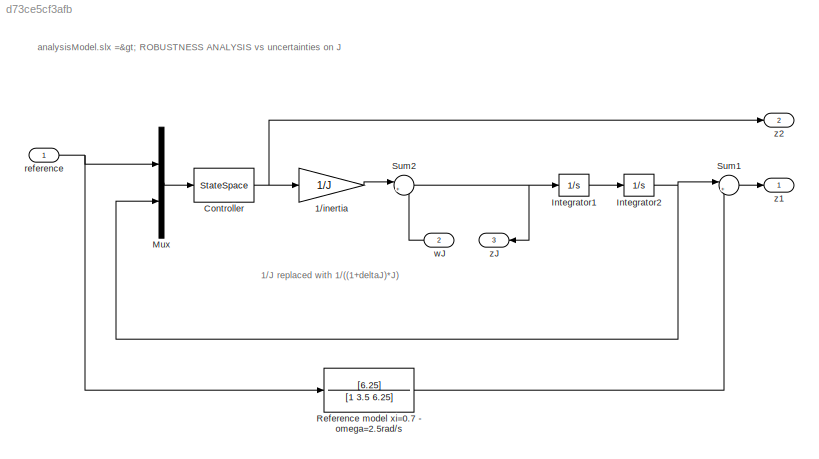
MODEL slx_d73ce5cf3afb
KIND model
CONFIG AbsTol = auto
CONFIG EnableMultiTasking = on
CONFIG FixedStep = auto
CONFIG MaxStep = auto
CONFIG MinStep = auto
CONFIG RelTol = 1e-3
CONFIG SampleTimeConstraint = Unconstrained
CONFIG Solver = ode45
CONFIG SolverName = ode45
CONFIG StartTime = 0.0
CONFIG StopTime = 10.0
BLOCK [Gain] 1//inertia
  Gain = 1/J
BLOCK [StateSpace] Controller
  A = K.a
  B = K.b
  C = K.c
  D = K.d
  InitialCondition = 0
  Ports = [1, 1]
BLOCK [Integrator] Integrator1
  Ports = [1, 1]
BLOCK [Integrator] Integrator2
  Ports = [1, 1]
BLOCK [Mux] Mux
  DisplayOption = bar
  Inputs = 2
  Ports = [2, 1]
BLOCK [TransferFcn] Reference model xi=0.7 - omega=2.5rad//s
  Denominator = [1 3.5 6.25]
  Numerator = [6.25]
BLOCK [Sum] Sum1
  IconShape = round
  InputSameDT = off
  Inputs = |+-
  OutDataTypeStr = Inherit: Inherit via internal rule
  Ports = [2, 1]
BLOCK [Sum] Sum2
  IconShape = round
  InputSameDT = off
  Inputs = |+-
  OutDataTypeStr = Inherit: Inherit via internal rule
  Ports = [2, 1]
BLOCK [Inport] reference
  IconDisplay = Port number
BLOCK [Inport] wJ
  IconDisplay = Port number
  Port = 2
BLOCK [Outport] z1
  IconDisplay = Port number
  VectorParamsAs1DForOutWhenUnconnected = on
BLOCK [Outport] z2
  IconDisplay = Port number
  Port = 2
  VectorParamsAs1DForOutWhenUnconnected = on
BLOCK [Outport] zJ
  IconDisplay = Port number
  Port = 3
  VectorParamsAs1DForOutWhenUnconnected = on
ANNOTATION (root): 1/J replaced with 1/((1+deltaJ)*J)
ANNOTATION (root): analysisModel.slx => ROBUSTNESS ANALYSIS vs uncertainties on J
LINE 1//inertia:1 -> Sum2:1
NET Controller:1 -> 1//inertia:1, z2:1
LINE Integrator1:1 -> Integrator2:1
NET Integrator2:1 -> Mux:2, Sum1:1
LINE Mux:1 -> Controller:1
LINE Reference model xi=0.7 - omega=2.5rad//s:1 -> Sum1:2
LINE Sum1:1 -> z1:1
NET Sum2:1 -> Integrator1:1, zJ:1
NET reference:1 -> Mux:1, Reference model xi=0.7 - omega=2.5rad//s:1
LINE wJ:1 -> Sum2:2
note: NET lines group one-source signal fan-out (src -> all destinations, sorted); 1:1 wires keep LINE
